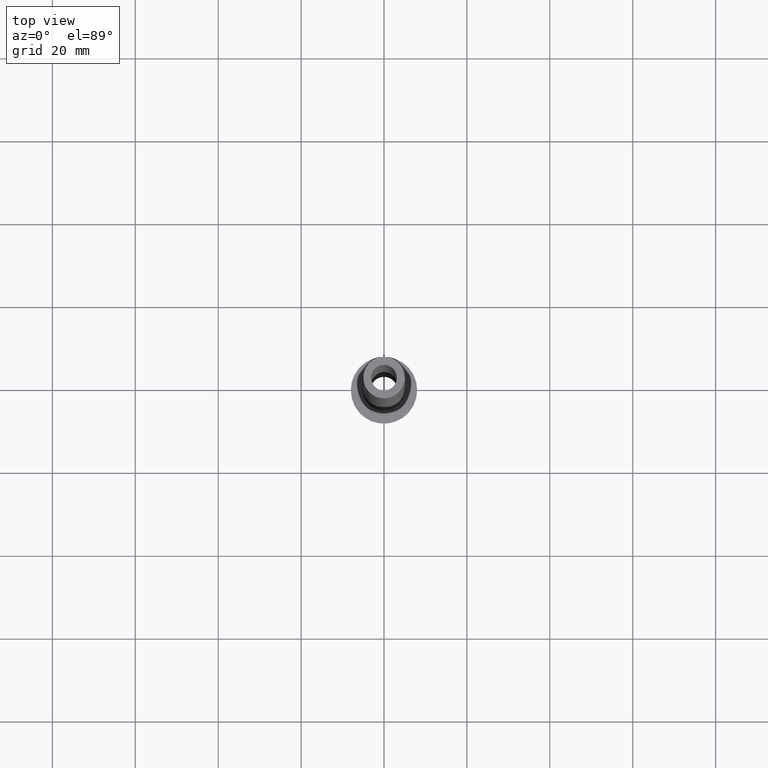
[diagram: clean part render]
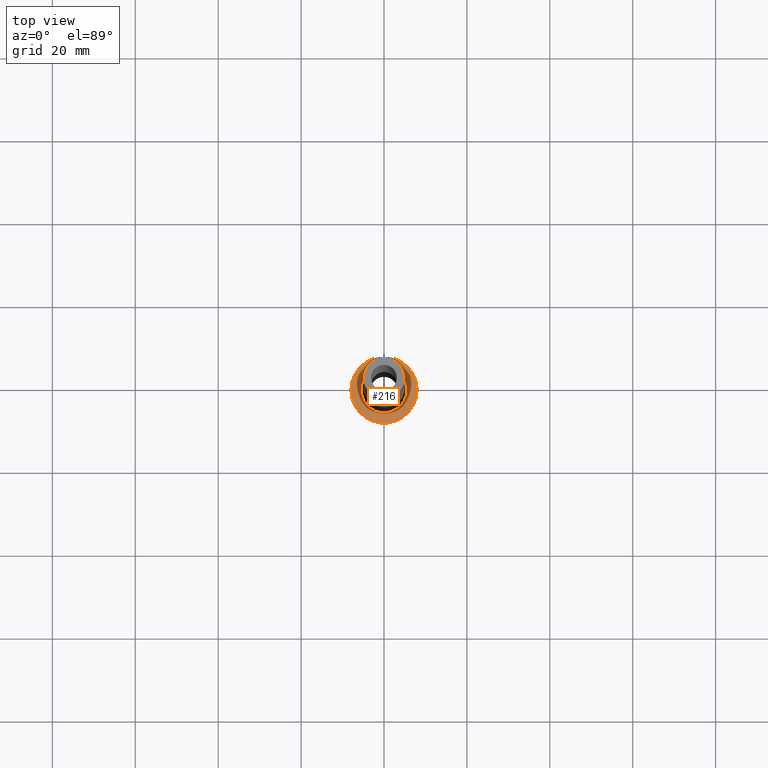
[diagram: same view with one face highlighted and labeled with its STEP entity id]
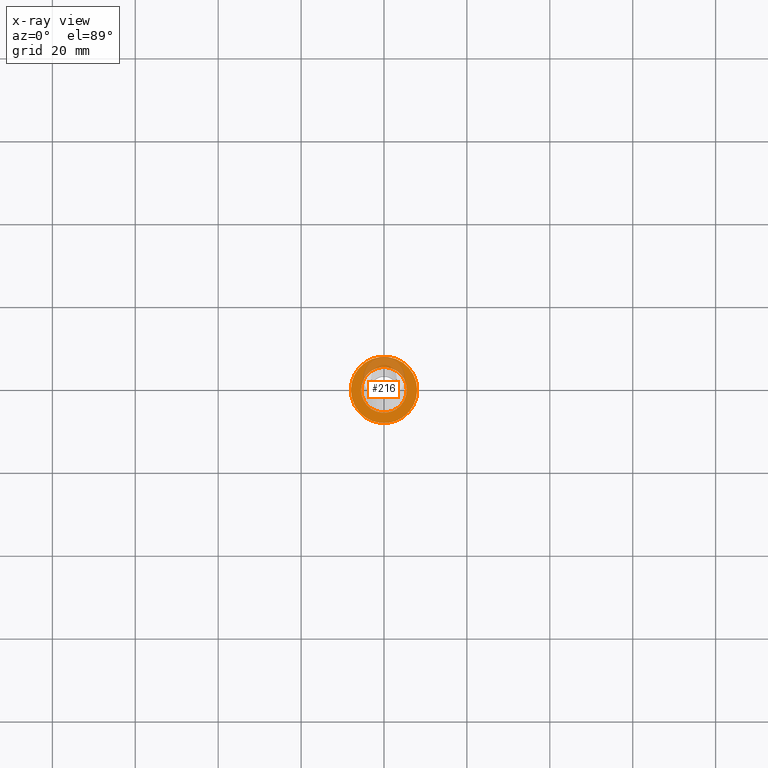
[diagram: x-ray of the same camera — body ghosted, the highlighted face saturated]
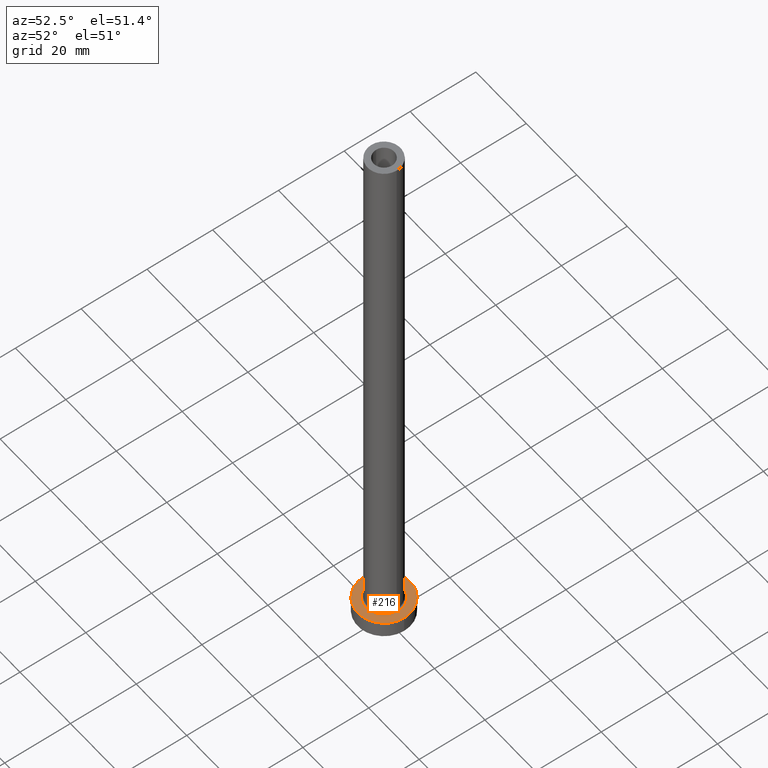
[diagram: same view with one face highlighted and labeled with its STEP entity id]
A machine part, top view. The second image highlights one B-rep face of the part: STEP entity #216.
The next image is the same camera in x-ray: the body ghosted, the highlighted face saturated — about 22% of this face is hidden behind the body in this view.
A second angle (auxiliary view) of the same face is appended — the face is thin or edge-on in the first view.
In plain terms, the highlighted planar face has unit normal (0, 0, 1).
Its self-contained STEP definition (entity closure, byte-faithful):
#16 = AXIS2_PLACEMENT_3D ( 'NONE', #232, #381, #244 ) ;
#17 = AXIS2_PLACEMENT_3D ( 'NONE', #128, #226, #51 ) ;
#34 = VERTEX_POINT ( 'NONE', #392 ) ;
#44 = VERTEX_POINT ( 'NONE', #423 ) ;
#46 = ORIENTED_EDGE ( 'NONE', *, *, #50, .T. ) ;
#50 = EDGE_CURVE ( 'NONE', #44, #380, #174, .T. ) ;
#51 = DIRECTION ( 'NONE',  ( 1.000000000000000000, 0.000000000000000000, 0.000000000000000000 ) ) ;
#81 = FACE_BOUND ( 'NONE', #139, .T. ) ;
#100 = DIRECTION ( 'NONE',  ( 1.000000000000000000, 0.000000000000000000, 0.000000000000000000 ) ) ;
#101 = EDGE_CURVE ( 'NONE', #422, #34, #377, .T. ) ;
#105 = AXIS2_PLACEMENT_3D ( 'NONE', #265, #446, #100 ) ;
#109 = CARTESIAN_POINT ( 'NONE',  ( 8.000000000000000000, 9.797174393178825657E-16, 5.000000000000000000 ) ) ;
#113 = DIRECTION ( 'NONE',  ( 1.000000000000000000, 0.000000000000000000, 0.000000000000000000 ) ) ;
#128 = CARTESIAN_POINT ( 'NONE',  ( 0.000000000000000000, 0.000000000000000000, 5.000000000000000000 ) ) ;
#139 = EDGE_LOOP ( 'NONE', ( #325, #197 ) ) ;
#174 = CIRCLE ( 'NONE', #16, 8.000000000000000000 ) ;
#184 = PLANE ( 'NONE',  #414 ) ;
#197 = ORIENTED_EDGE ( 'NONE', *, *, #439, .T. ) ;
#216 = ADVANCED_FACE ( 'NONE', ( #81, #285 ), #184, .T. ) ;
#226 = DIRECTION ( 'NONE',  ( 0.000000000000000000, 0.000000000000000000, 1.000000000000000000 ) ) ;
#232 = CARTESIAN_POINT ( 'NONE',  ( 0.000000000000000000, 0.000000000000000000, 5.000000000000000000 ) ) ;
#244 = DIRECTION ( 'NONE',  ( 1.000000000000000000, 0.000000000000000000, 0.000000000000000000 ) ) ;
#246 = EDGE_LOOP ( 'NONE', ( #46, #284 ) ) ;
#252 = DIRECTION ( 'NONE',  ( 0.000000000000000000, 0.000000000000000000, 1.000000000000000000 ) ) ;
#265 = CARTESIAN_POINT ( 'NONE',  ( 0.000000000000000000, 0.000000000000000000, 5.000000000000000000 ) ) ;
#276 = CIRCLE ( 'NONE', #409, 5.500000000000000000 ) ;
#284 = ORIENTED_EDGE ( 'NONE', *, *, #320, .T. ) ;
#285 = FACE_OUTER_BOUND ( 'NONE', #246, .T. ) ;
#287 = CARTESIAN_POINT ( 'NONE',  ( 0.000000000000000000, 0.000000000000000000, 5.000000000000000000 ) ) ;
#290 = DIRECTION ( 'NONE',  ( -0.000000000000000000, -0.000000000000000000, -1.000000000000000000 ) ) ;
#291 = CARTESIAN_POINT ( 'NONE',  ( 0.000000000000000000, 0.000000000000000000, 5.000000000000000000 ) ) ;
#311 = CARTESIAN_POINT ( 'NONE',  ( 5.500000000000000000, 0.000000000000000000, 5.000000000000002665 ) ) ;
#320 = EDGE_CURVE ( 'NONE', #380, #44, #365, .T. ) ;
#325 = ORIENTED_EDGE ( 'NONE', *, *, #101, .T. ) ;
#362 = DIRECTION ( 'NONE',  ( 1.000000000000000000, 0.000000000000000000, -0.000000000000000000 ) ) ;
#365 = CIRCLE ( 'NONE', #17, 8.000000000000000000 ) ;
#377 = CIRCLE ( 'NONE', #105, 5.500000000000000000 ) ;
#380 = VERTEX_POINT ( 'NONE', #109 ) ;
#381 = DIRECTION ( 'NONE',  ( 0.000000000000000000, 0.000000000000000000, 1.000000000000000000 ) ) ;
#392 = CARTESIAN_POINT ( 'NONE',  ( -5.500000000000000000, 6.735557395310442023E-16, 5.000000000000002665 ) ) ;
#409 = AXIS2_PLACEMENT_3D ( 'NONE', #287, #290, #113 ) ;
#414 = AXIS2_PLACEMENT_3D ( 'NONE', #291, #252, #362 ) ;
#422 = VERTEX_POINT ( 'NONE', #311 ) ;
#423 = CARTESIAN_POINT ( 'NONE',  ( -8.000000000000000000, 0.000000000000000000, 5.000000000000000000 ) ) ;
#439 = EDGE_CURVE ( 'NONE', #34, #422, #276, .T. ) ;
#446 = DIRECTION ( 'NONE',  ( -0.000000000000000000, -0.000000000000000000, -1.000000000000000000 ) ) ;